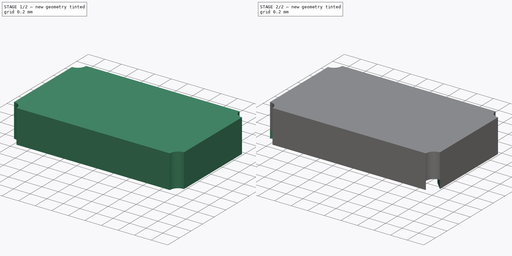
[diagram: build sequence overview — one tinted view per stage of 2, left to right]
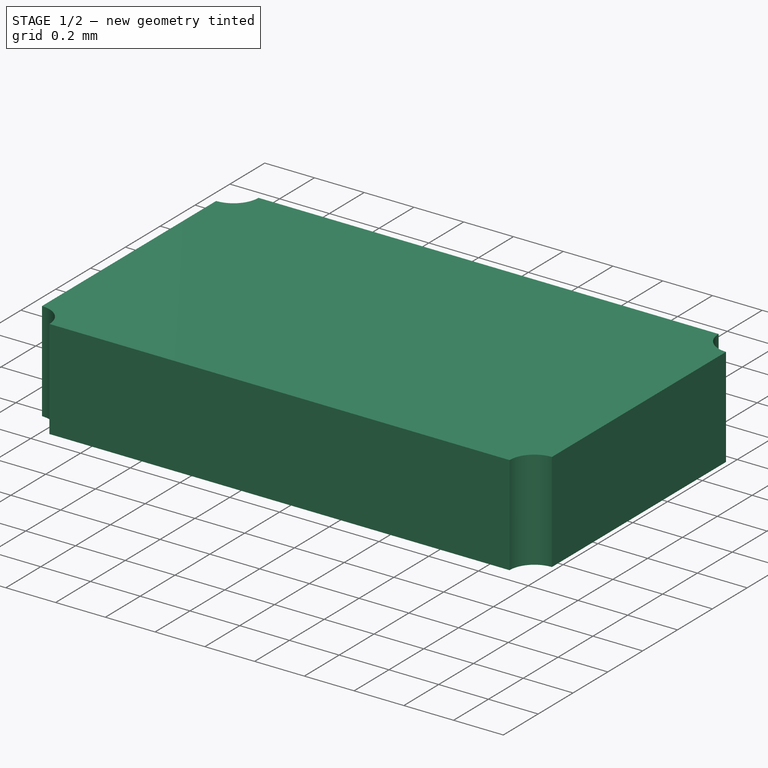
[diagram: stage 1 of 2 — iso view after this stage's code; geometry added in this stage tinted green]
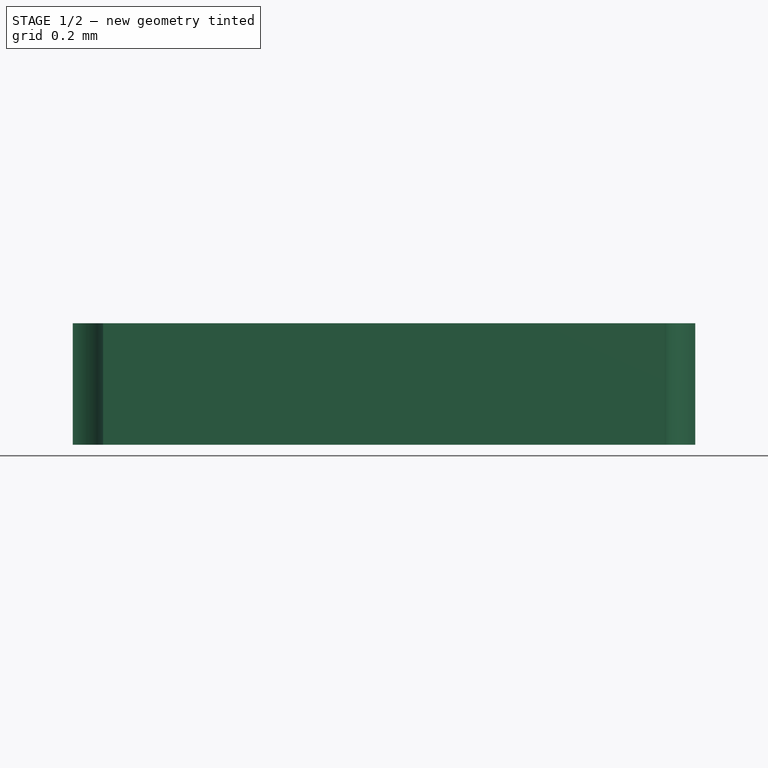
[diagram: stage 1 of 2 — front view after this stage's code; geometry added in this stage tinted green]
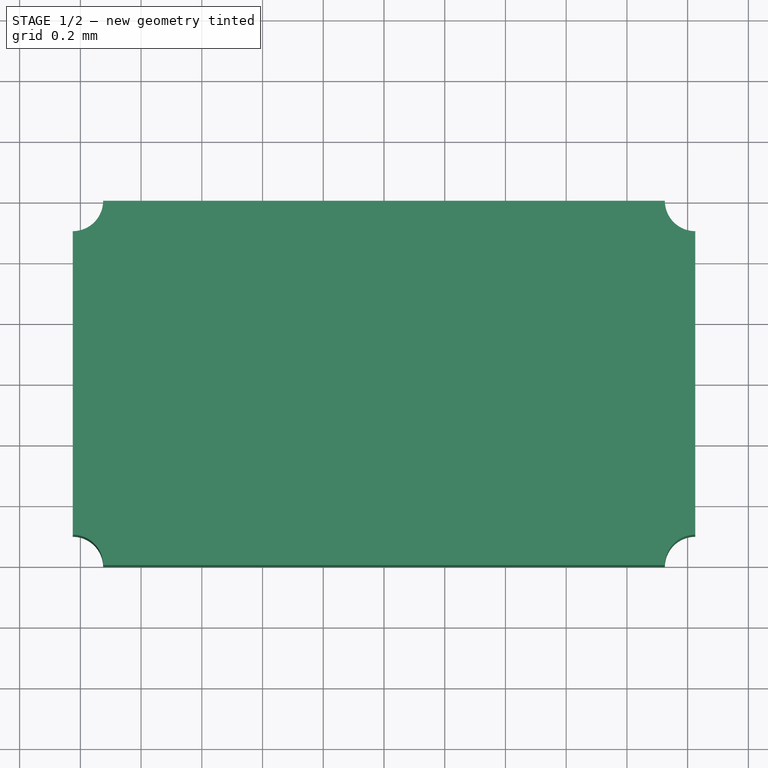
[diagram: stage 1 of 2 — top view after this stage's code; geometry added in this stage tinted green]
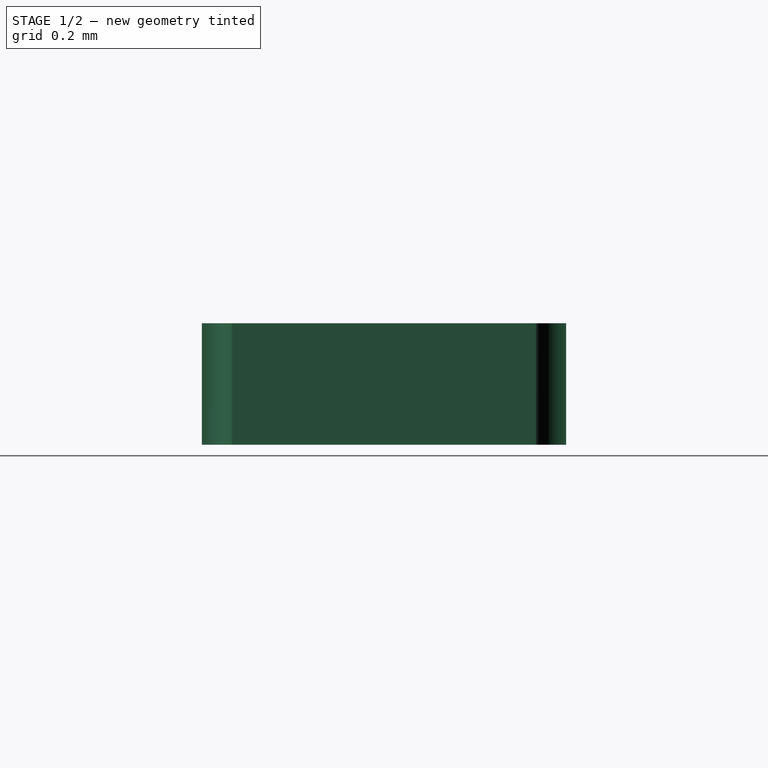
[diagram: stage 1 of 2 — right view after this stage's code; geometry added in this stage tinted green]
FCSTD DOCUMENT  (FreeCAD 0.17R12607 (Git))
Label: FC-12M Body
License: CreativeCommons Attribution-ShareAlike
LicenseURL: http://creativecommons.org/licenses/by-sa/4.0/
objects: Sketcher::SketchObject×2, PartDesign::Pad×1, PartDesign::Pocket×1, PartDesign::Body×1
note: 7 computed .brp shape members not serialized (recipe doc carries the construction recipe); baked Part::Feature solids carry a one-line shape summary decoded from their .brp

FEATURE [Sketcher::SketchObject] Sketch
  MapMode = 5
  Support = -> [XY_Plane]
  sketch-geometry (8):
    g0: ArcOfCircle CenterX=-1.025 CenterY=0.6 CenterZ=0 NormalX=0 NormalY=0 NormalZ=1 AngleXU=0 Radius=0.1 StartAngle=4.71239 EndAngle=6.28319
    g1: LineSegment StartX=-0.925 StartY=0.6 StartZ=0 EndX=0.925 EndY=0.6 EndZ=0
    g2: LineSegment StartX=-1.025 StartY=0.5 StartZ=0 EndX=-1.025 EndY=-0.499998 EndZ=0
    g3: ArcOfCircle CenterX=-1.025 CenterY=-0.599998 CenterZ=0 NormalX=0 NormalY=0 NormalZ=1 AngleXU=0 Radius=0.1 StartAngle=6.28316 EndAngle=7.85398
    g4: LineSegment StartX=-0.925 StartY=-0.6 StartZ=0 EndX=0.925 EndY=-0.6 EndZ=0
    g5: ArcOfCircle CenterX=1.025 CenterY=-0.599998 CenterZ=0 NormalX=0 NormalY=0 NormalZ=1 AngleXU=0 Radius=0.1 StartAngle=1.5708 EndAngle=3.14161
    g6: LineSegment StartX=1.025 StartY=-0.499998 StartZ=0 EndX=1.025 EndY=0.5 EndZ=0
    g7: ArcOfCircle CenterX=1.025 CenterY=0.6 CenterZ=0 NormalX=0 NormalY=0 NormalZ=1 AngleXU=0 Radius=0.1 StartAngle=3.14159 EndAngle=4.71239
  constraints (26):
    c: Coincident(g1,g0)
    c: Horizontal(g1)
    c: Coincident(g2,g0)
    c: Vertical(g2)
    c: Coincident(g3,g2)
    c: Coincident(g4,g3)
    c: Horizontal(g4)
    c: Coincident(g5,g4)
    c: Coincident(g6,g5)
    c: Vertical(g6)
    c: Coincident(g7,g6)
    c: Coincident(g7,g1)
    c: Equal(g1,g4)
    c: Equal(g2,g6)
    c: Equal(g0,g3)
    c: Equal(g0,g7)
    c: Radius(g7) = 0.1
    c: Equal(g0,g5)
    c: Symmetric(g0,g6,g-2)
    c: Symmetric(g0,g3,g-1)
    c: Perpendicular(g0,g1)
    c: Perpendicular(g0,g2)
    c: Perpendicular(g3,g2)
    c: Perpendicular(g5,g6)
    c: Distance(g0,g6) = 2.05
    c: Distance(g1,g4) = 1.2
FEATURE [PartDesign::Pad] Pad
  Length = 0.4
  Length2 = 100
  Profile = -> Sketch
  Type = 0
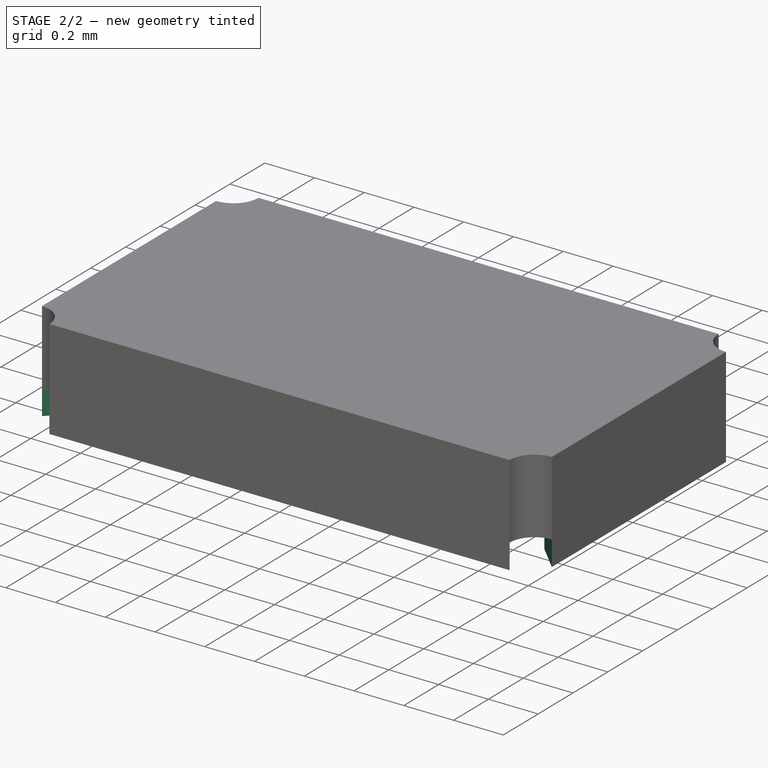
[diagram: stage 2 of 2 — iso view after this stage's code; geometry added in this stage tinted green]
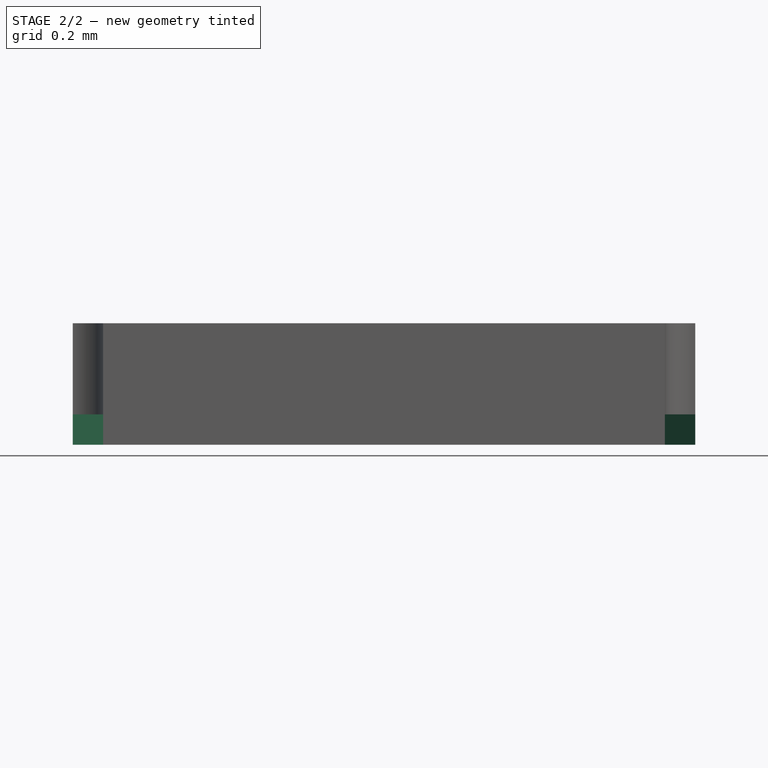
[diagram: stage 2 of 2 — front view after this stage's code; geometry added in this stage tinted green]
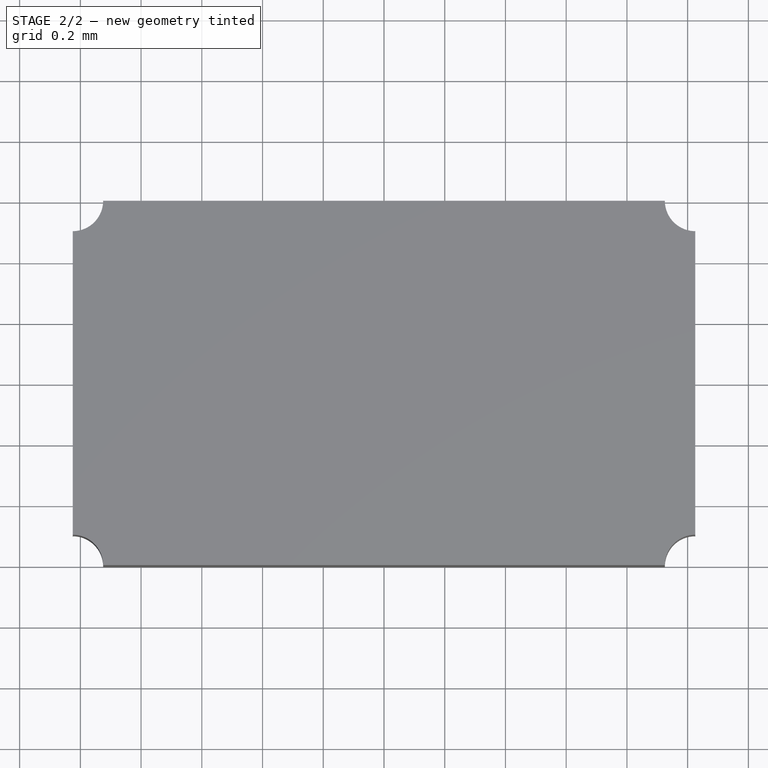
[diagram: stage 2 of 2 — top view after this stage's code; geometry added in this stage tinted green]
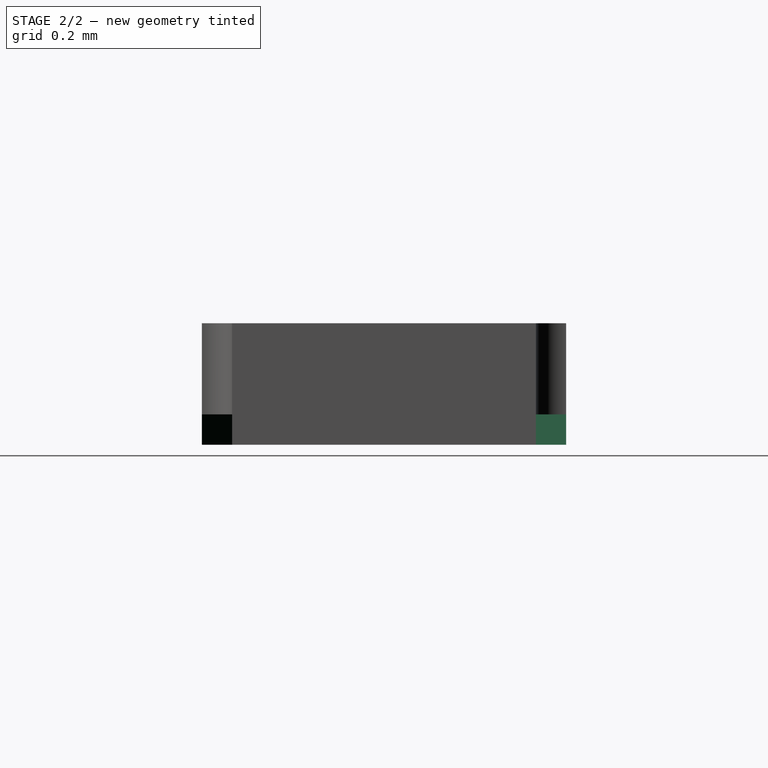
[diagram: stage 2 of 2 — right view after this stage's code; geometry added in this stage tinted green]
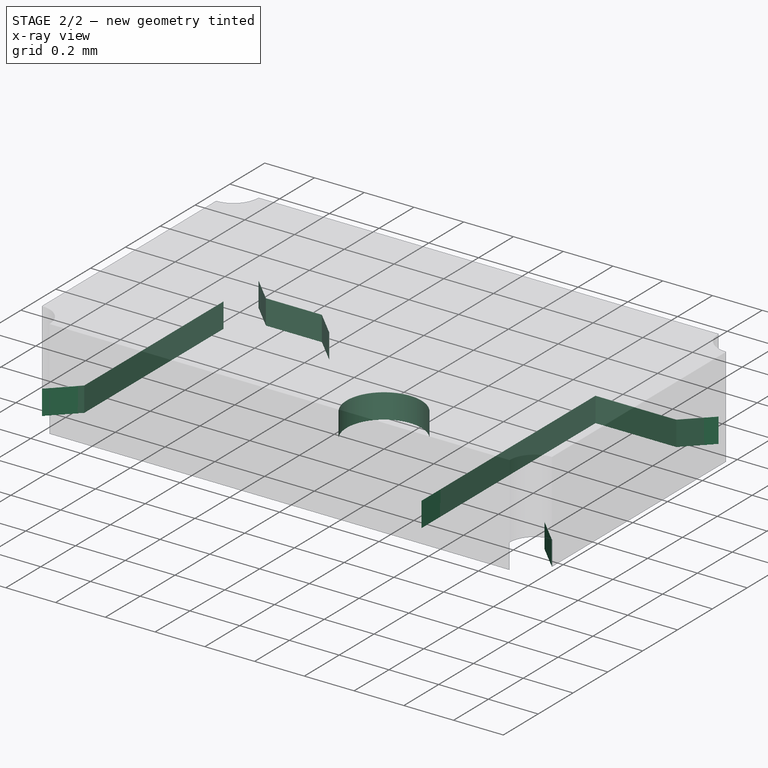
[diagram: stage 2 of 2 — x-ray composite at the iso view; earlier geometry ghosted, this stage's added geometry solid]
FEATURE [Sketcher::SketchObject] Sketch001
  ExternalGeometry = -> [Pad]
  MapMode = 5
  Placement = pos=(0,0,0) rot=(1,0,0;3.14159rad)
  Support = -> [Pad]
  sketch-geometry (27):
    g0: LineSegment StartX=-0.925 StartY=0.6 StartZ=0 EndX=-0.925 EndY=0.599998 EndZ=0
    g1: LineSegment StartX=-0.925 StartY=0.599998 StartZ=0 EndX=-0.825002 EndY=0.5 EndZ=0
    g2: LineSegment StartX=-0.825002 StartY=0.5 StartZ=0 EndX=-0.6 EndY=0.5 EndZ=0
    g3: LineSegment StartX=-0.6 StartY=0.5 StartZ=0 EndX=-0.5 EndY=0.4 EndZ=0
    g4: LineSegment StartX=-0.5 StartY=0.4 StartZ=0 EndX=-0.5 EndY=-0.4 EndZ=0
    g5: LineSegment StartX=-0.5 StartY=-0.4 StartZ=0 EndX=-0.6 EndY=-0.5 EndZ=0
    g6: LineSegment StartX=-0.6 StartY=-0.5 StartZ=0 EndX=-0.825002 EndY=-0.5 EndZ=0
    g7: LineSegment StartX=-0.825002 StartY=-0.5 StartZ=0 EndX=-0.925 EndY=-0.599998 EndZ=0
    g8: LineSegment StartX=-0.925 StartY=-0.599998 StartZ=0 EndX=-0.925 EndY=-0.6 EndZ=0
    g9: LineSegment StartX=-0.925 StartY=-0.6 StartZ=0 EndX=-1.025 EndY=-0.5 EndZ=0
    g10: LineSegment StartX=-1.025 StartY=-0.5 StartZ=0 EndX=-1.025 EndY=-0.5 EndZ=0
    g11: LineSegment StartX=-1.025 StartY=-0.5 StartZ=0 EndX=-0.925 EndY=-0.4 EndZ=0
    g12: LineSegment StartX=-0.925 StartY=-0.4 StartZ=0 EndX=-0.925 EndY=0.4 EndZ=0
    g13: LineSegment StartX=-0.925 StartY=0.4 StartZ=0 EndX=-1.025 EndY=0.499998 EndZ=0
    g14: LineSegment StartX=-1.025 StartY=0.499998 StartZ=0 EndX=-1.025 EndY=0.499998 EndZ=0
    g15: LineSegment StartX=-1.025 StartY=0.499998 StartZ=0 EndX=-0.925 EndY=0.6 EndZ=0
    g16: LineSegment StartX=0.925 StartY=0.6 StartZ=0 EndX=1.025 EndY=0.499998 EndZ=0
    g17: LineSegment StartX=1.025 StartY=0.499998 StartZ=0 EndX=0.925 EndY=0.399998 EndZ=0
    g18: LineSegment StartX=0.925 StartY=0.399998 StartZ=0 EndX=0.925 EndY=-0.400002 EndZ=0
    g19: LineSegment StartX=0.925 StartY=-0.400002 StartZ=0 EndX=1.025 EndY=-0.5 EndZ=0
    g20: LineSegment StartX=1.025 StartY=-0.5 StartZ=0 EndX=0.925 EndY=-0.6 EndZ=0
    g21: LineSegment StartX=0.925 StartY=-0.6 StartZ=0 EndX=0.825 EndY=-0.5 EndZ=0
    g22: LineSegment StartX=0.825 StartY=-0.5 StartZ=0 EndX=0.5 EndY=-0.5 EndZ=0
    g23: LineSegment StartX=0.5 StartY=-0.5 StartZ=0 EndX=0.5 EndY=0.5 EndZ=0
    g24: LineSegment StartX=0.5 StartY=0.5 StartZ=0 EndX=0.825 EndY=0.5 EndZ=0
    g25: LineSegment StartX=0.825 StartY=0.5 StartZ=0 EndX=0.925 EndY=0.6 EndZ=0
    g26: Circle CenterX=0 CenterY=0 CenterZ=0 NormalX=0 NormalY=0 NormalZ=1 AngleXU=0 Radius=0.15
  constraints (71):
    c: Coincident(g-3,g0)
    c: Vertical(g0)
    c: Coincident(g0,g1)
    c: Coincident(g1,g2)
    c: Horizontal(g2)
    c: Coincident(g2,g3)
    c: Coincident(g3,g4)
    c: Vertical(g4)
    c: Coincident(g4,g5)
    c: Coincident(g5,g6)
    c: Horizontal(g6)
    c: Coincident(g6,g7)
    c: Coincident(g7,g8)
    c: Coincident(g8,g-5)
    c: Coincident(g8,g9)
    c: Coincident(g9,g-4)
    c: Coincident(g9,g10)
    c: Coincident(g10,g11)
    c: Coincident(g11,g12)
    c: Vertical(g12)
    c: Coincident(g12,g13)
    c: Coincident(g13,g14)
    c: Coincident(g14,g-4)
    c: Coincident(g14,g15)
    c: Coincident(g15,g0)
    c: Horizontal(g14)
    c: Horizontal(g10)
    c: Vertical(g8)
    c: Equal(g2,g6)
    c: Equal(g14,g10)
    c: Equal(g10,g8)
    c: Equal(g14,g0)
    c: Angle(g3,g4) = 2.35619
    c: Angle(g2,g1) = 2.35619
    c: Angle(g13,g12) = 2.35619
    c: Symmetric(g3,g4,g-1)
    c: Symmetric(g2,g5,g-1)
    c: Symmetric(g11,g12,g-1)
    c: Distance(g4,g-4) = 0.525
    c: Distance(g11,g-4) = 0.1
    c: DistanceY(g12,g12) = 0.8
    c: Distance(g2,g5) = 1
    c: Equal(g12,g4)
    c: Coincident(g-3,g16)
    c: Coincident(g16,g-6)
    c: Coincident(g16,g17)
    c: Coincident(g17,g18)
    c: Vertical(g18)
    c: Coincident(g18,g19)
    c: Coincident(g19,g-6)
    c: Coincident(g19,g20)
    c: Coincident(g20,g-5)
    c: Coincident(g20,g21)
    c: Coincident(g21,g22)
    c: Horizontal(g22)
    c: Coincident(g22,g23)
    c: Vertical(g23)
    c: Coincident(g23,g24)
    c: Horizontal(g24)
    c: Coincident(g24,g25)
    c: Coincident(g25,g16)
    c: Angle(g18,g17) = 2.35619
    c: Angle(g25,g24) = 2.35619
    c: Distance(g23,g-6) = 0.525
    c: Distance(g17,g-6) = 0.1
    c: Equal(g12,g18)
    c: DistanceY(g23,g23) = 1
    c: Equal(g24,g22)
    c: Symmetric(g24,g21,g-1)
    c: Coincident(g26,g-1)
    c: Radius(g26) = 0.15
FEATURE [PartDesign::Pocket] Pocket
  BaseFeature = -> Pad
  Length = 0.1
  Profile = -> Sketch001
  Type = 0
FEATURE [PartDesign::Body] Body
  Group = -> [Sketch,Pad,Sketch001,Pocket]
  Origin = -> Origin
  Tip = -> Pocket
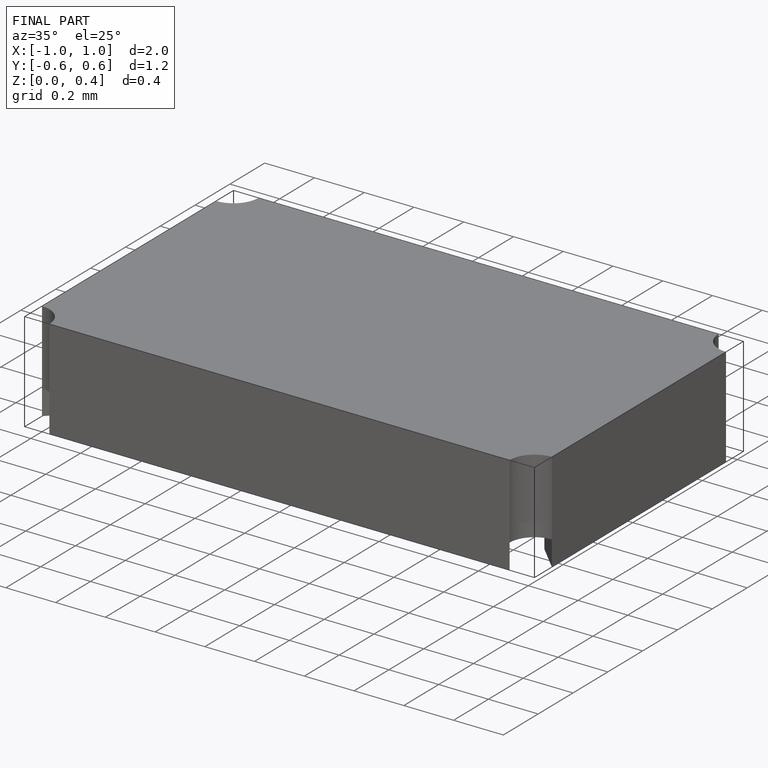
[diagram: finished part — iso view with bounding-box wireframe]
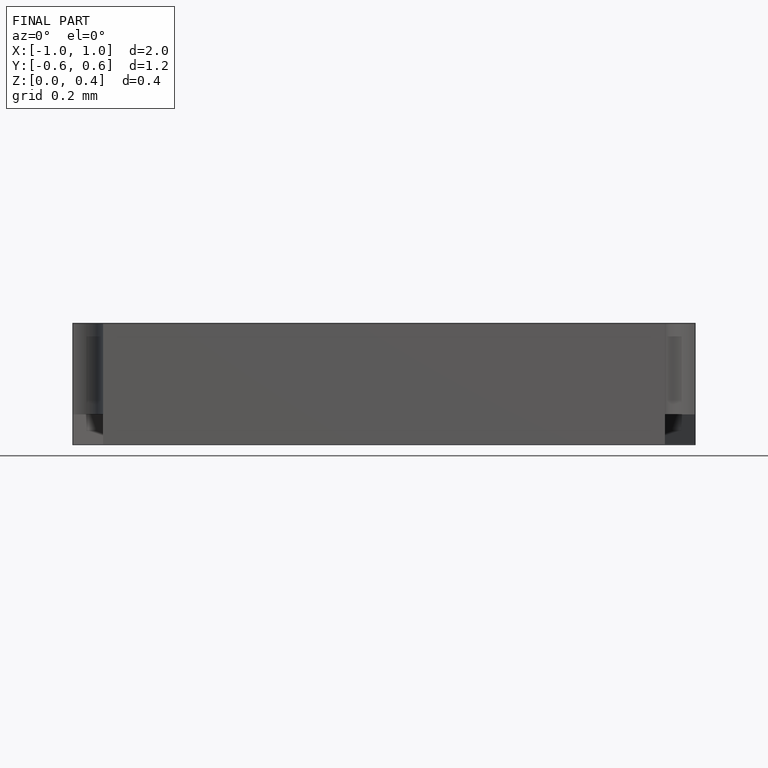
[diagram: finished part — front view with bounding-box wireframe]
